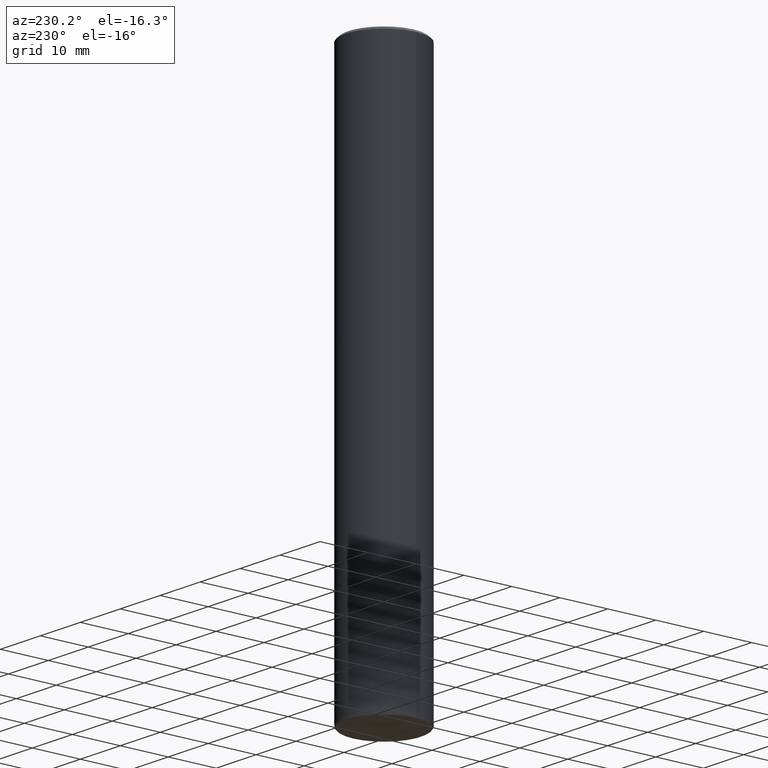
[diagram: clean part render]
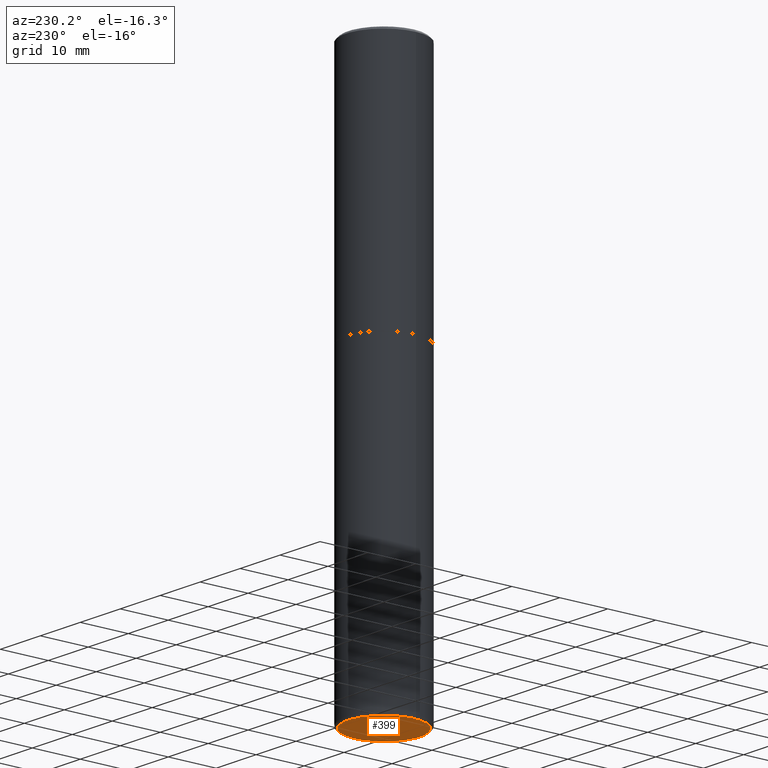
[diagram: same view with one face highlighted and labeled with its STEP entity id]
A machine part, auxiliary view. The second image highlights one B-rep face of the part: STEP entity #399.
In plain terms, the highlighted planar face has unit normal (0, -0, -1).
Its self-contained STEP definition (entity closure, byte-faithful):
#6 = DIRECTION ( 'NONE',  ( -2.445468806185136597E-29, 3.491481338843145583E-15, 1.000000000000000000 ) ) ;
#21 = EDGE_CURVE ( 'NONE', #186, #215, #148, .T. ) ;
#33 = DIRECTION ( 'NONE',  ( 1.000000000000000000, -6.982962677686273021E-15, 0.000000000000000000 ) ) ;
#35 = DIRECTION ( 'NONE',  ( 2.438088387897960049E-29, -3.491481338843145188E-15, -1.000000000000000000 ) ) ;
#54 = AXIS2_PLACEMENT_3D ( 'NONE', #131, #35, #324 ) ;
#105 = CARTESIAN_POINT ( 'NONE',  ( 1.107210456688382074E-28, -1.580803090974622074E-14, -4.527599999999998737 ) ) ;
#131 = CARTESIAN_POINT ( 'NONE',  ( 1.692275825353211781E-28, -7.429561831938046296E-15, -4.527599999999998737 ) ) ;
#145 = ORIENTED_EDGE ( 'NONE', *, *, #346, .F. ) ;
#148 = CIRCLE ( 'NONE', #417, 0.2952500000000000124 ) ;
#186 = VERTEX_POINT ( 'NONE', #239 ) ;
#195 = DIRECTION ( 'NONE',  ( -2.445468806185136597E-29, 3.491481338843145583E-15, 1.000000000000000000 ) ) ;
#215 = VERTEX_POINT ( 'NONE', #313 ) ;
#239 = CARTESIAN_POINT ( 'NONE',  ( 0.2952500000000000124, -1.786975064033309297E-14, -4.527599999999998737 ) ) ;
#273 = CIRCLE ( 'NONE', #347, 0.2952500000000000124 ) ;
#276 = EDGE_LOOP ( 'NONE', ( #364, #145 ) ) ;
#281 = PLANE ( 'NONE',  #54 ) ;
#284 = FACE_OUTER_BOUND ( 'NONE', #276, .T. ) ;
#313 = CARTESIAN_POINT ( 'NONE',  ( -0.2952500000000000124, -1.360577393175455947E-14, -4.527599999999998737 ) ) ;
#324 = DIRECTION ( 'NONE',  ( -1.000000000000000000, 6.982962677686265922E-15, -4.876176775795935793E-29 ) ) ;
#346 = EDGE_CURVE ( 'NONE', #215, #186, #273, .T. ) ;
#347 = AXIS2_PLACEMENT_3D ( 'NONE', #105, #6, #350 ) ;
#349 = CARTESIAN_POINT ( 'NONE',  ( 1.107210456688382074E-28, -1.580803090974622074E-14, -4.527599999999998737 ) ) ;
#350 = DIRECTION ( 'NONE',  ( 1.000000000000000000, -6.982962677686273021E-15, 0.000000000000000000 ) ) ;
#364 = ORIENTED_EDGE ( 'NONE', *, *, #21, .F. ) ;
#399 = ADVANCED_FACE ( 'NONE', ( #284 ), #281, .T. ) ;
#417 = AXIS2_PLACEMENT_3D ( 'NONE', #349, #195, #33 ) ;